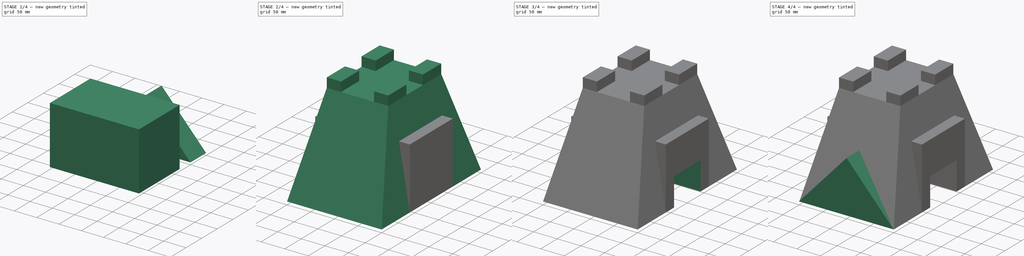
[diagram: build sequence overview — one tinted view per stage of 4, left to right]
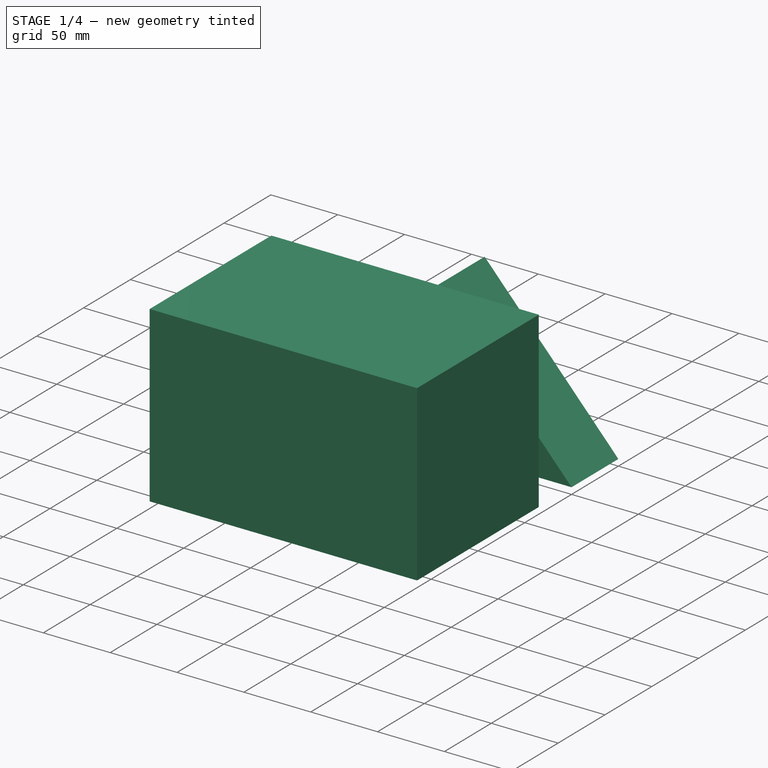
[diagram: stage 1 of 4 — iso view after this stage's code; geometry added in this stage tinted green]
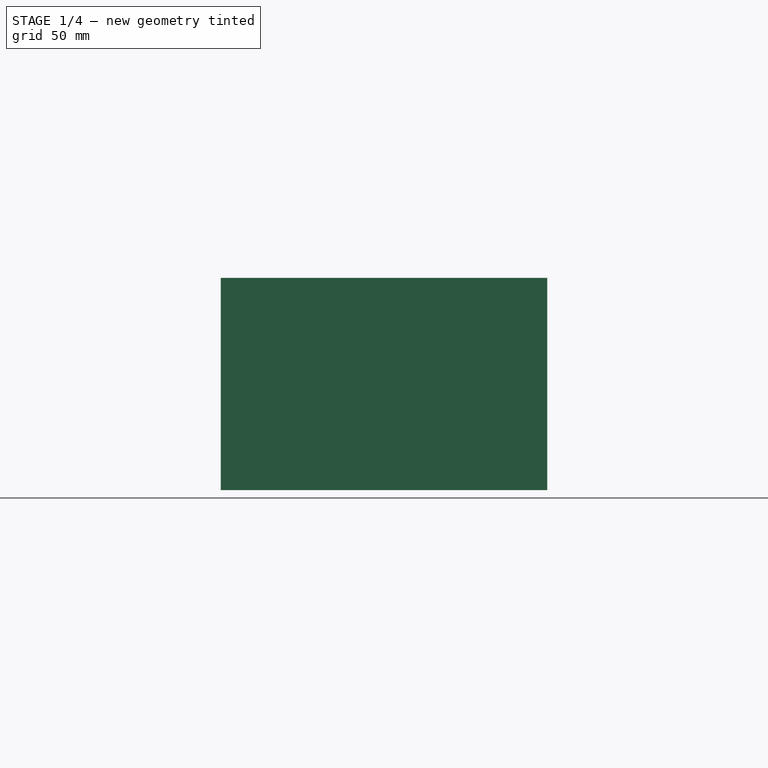
[diagram: stage 1 of 4 — front view after this stage's code; geometry added in this stage tinted green]
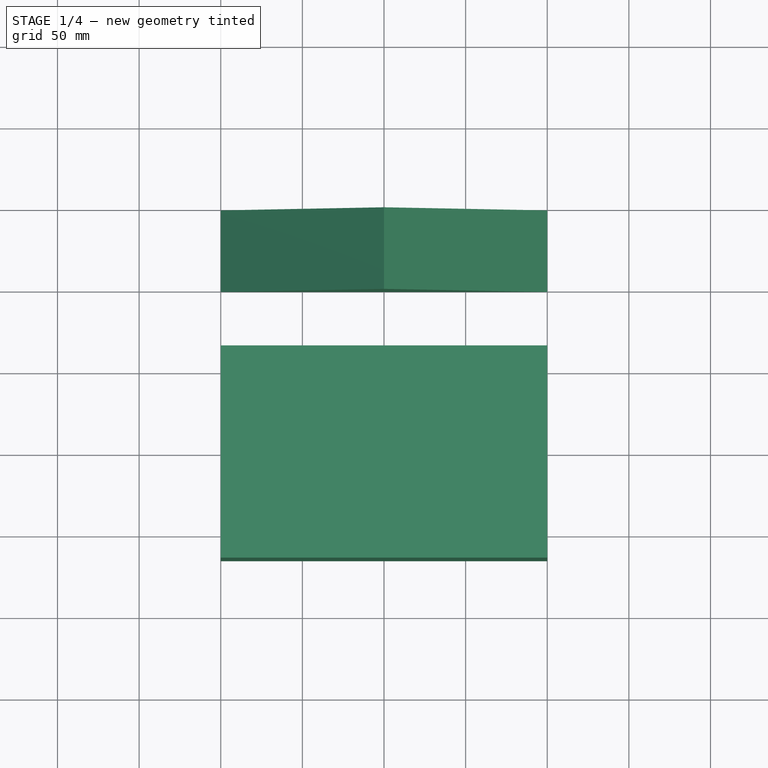
[diagram: stage 1 of 4 — top view after this stage's code; geometry added in this stage tinted green]
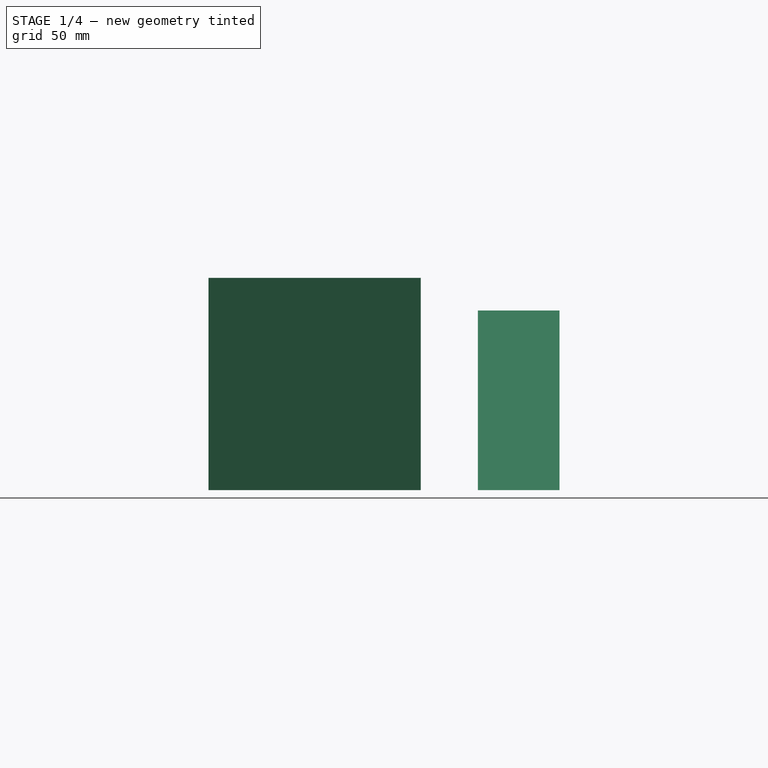
[diagram: stage 1 of 4 — right view after this stage's code; geometry added in this stage tinted green]
FCSTD DOCUMENT  (FreeCAD 0.16R)
Label: Ejer final 22
License: All rights reserved
LicenseURL: http://en.wikipedia.org/wiki/All_rights_reserved
objects: Sketcher::SketchObject×7, PartDesign::Pad×4, Part::MultiFuse×3, Part::Loft×1, PartDesign::Pocket×1, Part::Feature×1
note: 22 computed .brp shape members not serialized (recipe doc carries the construction recipe); baked Part::Feature solids carry a one-line shape summary decoded from their .brp

FEATURE [Sketcher::SketchObject] Sketch003
  Placement = pos=(0,0,0) rot=(0.57735,0.57735,0.57735;2.0944rad)
  sketch-geometry (4):
    g0: LineSegment StartX=-65 StartY=0 StartZ=0 EndX=65 EndY=0 EndZ=0
    g1: LineSegment StartX=65 StartY=0 StartZ=0 EndX=65 EndY=130 EndZ=0
    g2: LineSegment StartX=65 StartY=130 StartZ=0 EndX=-65 EndY=130 EndZ=0
    g3: LineSegment StartX=-65 StartY=130 StartZ=0 EndX=-65 EndY=0 EndZ=0
  constraints (12):
    c: Coincident(g0,g1)
    c: Coincident(g1,g2)
    c: Coincident(g2,g3)
    c: Coincident(g3,g0)
    c: Horizontal(g0)
    c: Horizontal(g2)
    c: Vertical(g1)
    c: Vertical(g3)
    c: PointOnObject(g0,g-1)
    c: Symmetric(g2,g1,g-2)
    c: DistanceX(g0,g0) = 130
    c: DistanceY(g0,g2) = 130
FEATURE [PartDesign::Pad] Pad001
  Length = 200
  Length2 = 100
  Midplane = true
  Placement = pos=(0,0,0) rot=(0.57735,0.57735,0.57735;2.0944rad)
  Sketch = -> Sketch003
  Type = 0
FEATURE [Sketcher::SketchObject] Sketch005
  Placement = pos=(0,150,0) rot=(-1,0,0;4.71239rad)
  sketch-geometry (3):
    g0: LineSegment StartX=-100 StartY=0 StartZ=0 EndX=0 EndY=110 EndZ=0
    g1: LineSegment StartX=0 StartY=110 StartZ=0 EndX=100 EndY=0 EndZ=0
    g2: LineSegment StartX=100 StartY=0 StartZ=0 EndX=-100 EndY=0 EndZ=0
  constraints (9):
    c: PointOnObject(g0,g-2)
    c: Coincident(g0,g1)
    c: Coincident(g1,g2)
    c: Coincident(g2,g0)
    c: Horizontal(g2)
    c: DistanceX(g2,g2) = 200
    c: Symmetric(g1,g0,g-2)
    c: DistanceY(g-1,g0) = 110
    c: PointOnObject(g-1,g2)
FEATURE [PartDesign::Pad] Pad002
  Length = 50
  Length2 = 100
  Placement = pos=(0,150,0) rot=(-1,0,0;4.71239rad)
  Sketch = -> Sketch005
  Type = 0
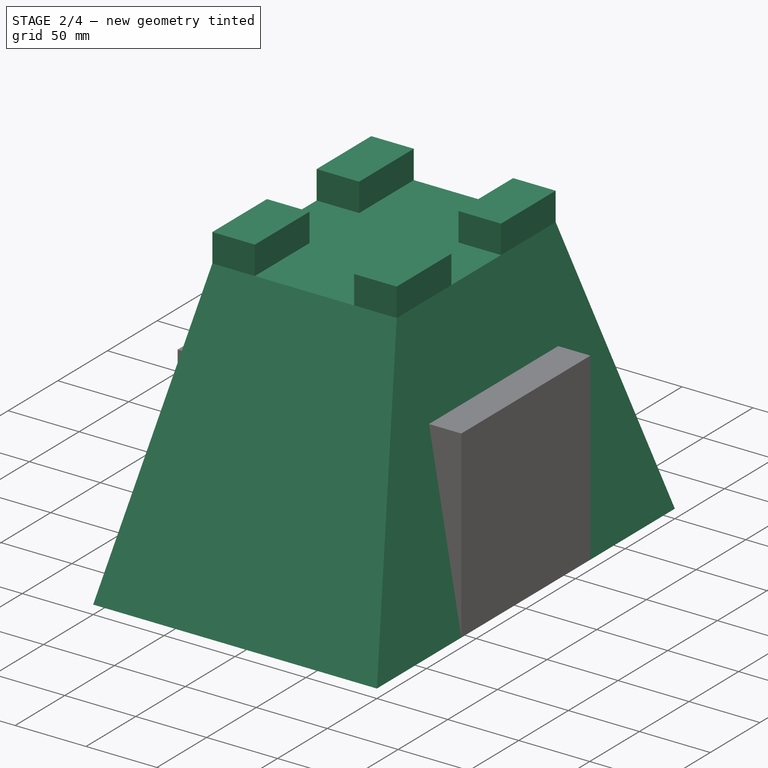
[diagram: stage 2 of 4 — iso view after this stage's code; geometry added in this stage tinted green]
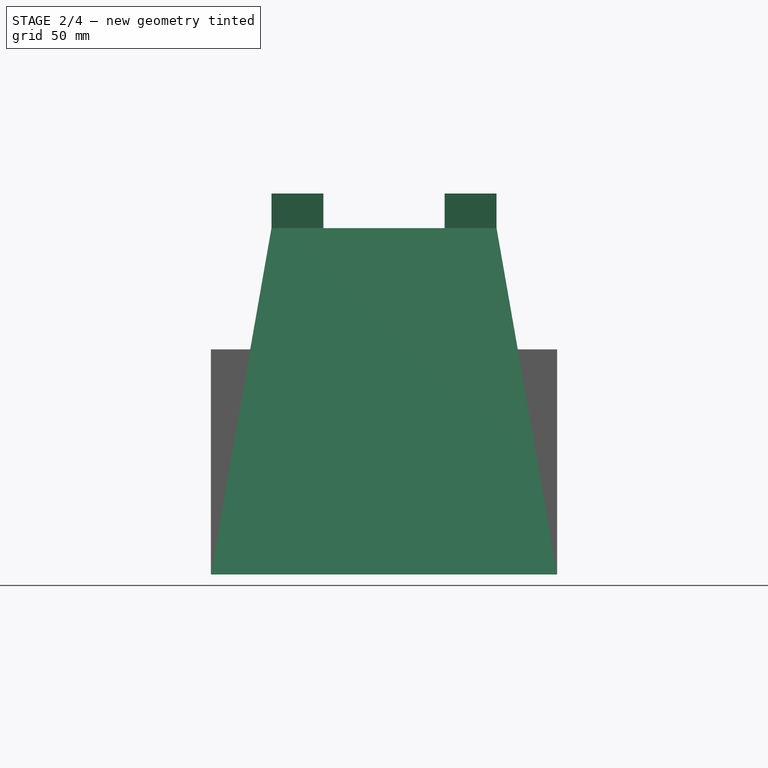
[diagram: stage 2 of 4 — front view after this stage's code; geometry added in this stage tinted green]
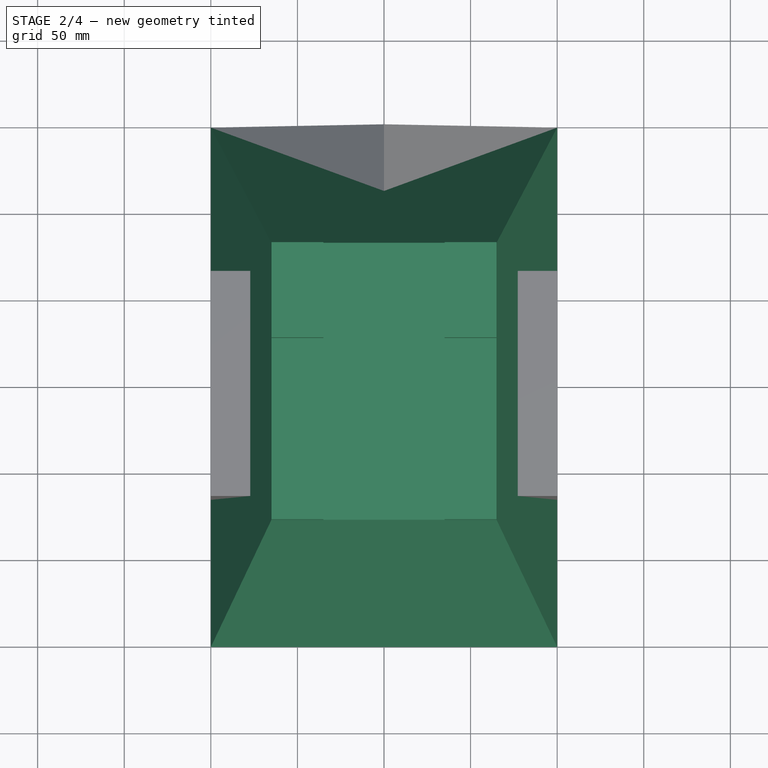
[diagram: stage 2 of 4 — top view after this stage's code; geometry added in this stage tinted green]
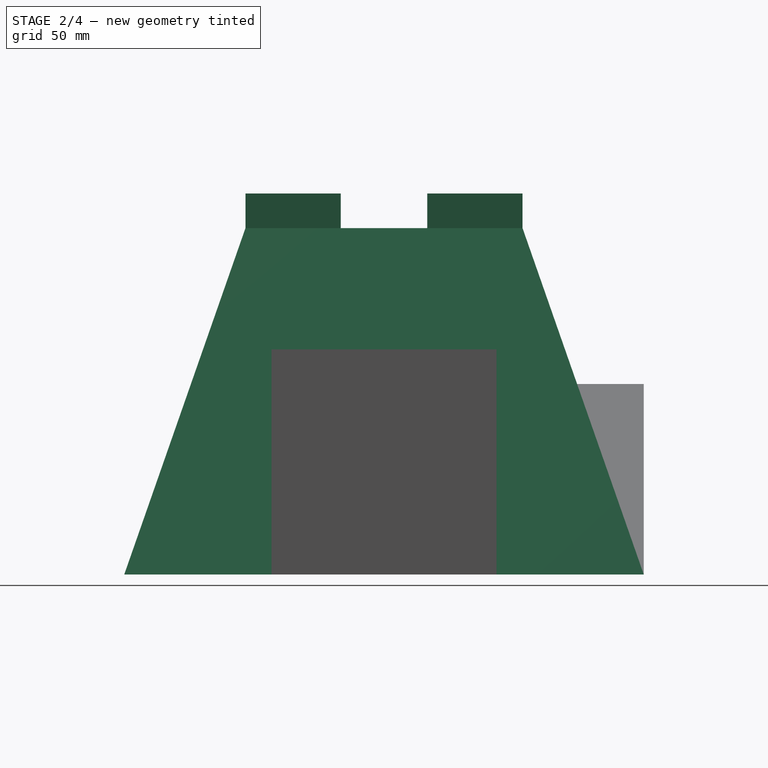
[diagram: stage 2 of 4 — right view after this stage's code; geometry added in this stage tinted green]
FEATURE [Sketcher::SketchObject] Sketch
  sketch-geometry (4):
    g0: LineSegment StartX=-100 StartY=150 StartZ=0 EndX=100 EndY=150 EndZ=0
    g1: LineSegment StartX=100 StartY=150 StartZ=0 EndX=100 EndY=-150 EndZ=0
    g2: LineSegment StartX=100 StartY=-150 StartZ=0 EndX=-100 EndY=-150 EndZ=0
    g3: LineSegment StartX=-100 StartY=-150 StartZ=0 EndX=-100 EndY=150 EndZ=0
  constraints (12):
    c: Coincident(g0,g1)
    c: Coincident(g1,g2)
    c: Coincident(g2,g3)
    c: Coincident(g3,g0)
    c: Horizontal(g0)
    c: Horizontal(g2)
    c: Vertical(g1)
    c: Vertical(g3)
    c: DistanceX(g2,g2) = 200
    c: DistanceY(g3,g3) = 300
    c: Symmetric(g1,g2,g-2)
    c: Symmetric(g0,g2,g-1)
FEATURE [Sketcher::SketchObject] Sketch001
  Placement = pos=(0,0,200) rot=(0,0,1;0rad)
  sketch-geometry (4):
    g0: LineSegment StartX=-65 StartY=80 StartZ=0 EndX=65 EndY=80 EndZ=0
    g1: LineSegment StartX=65 StartY=80 StartZ=0 EndX=65 EndY=-80 EndZ=0
    g2: LineSegment StartX=65 StartY=-80 StartZ=0 EndX=-65 EndY=-80 EndZ=0
    g3: LineSegment StartX=-65 StartY=-80 StartZ=0 EndX=-65 EndY=80 EndZ=0
  constraints (12):
    c: Coincident(g0,g1)
    c: Coincident(g1,g2)
    c: Coincident(g2,g3)
    c: Coincident(g3,g0)
    c: Horizontal(g0)
    c: Horizontal(g2)
    c: Vertical(g1)
    c: Vertical(g3)
    c: Symmetric(g2,g0,g-1)
    c: Symmetric(g0,g0,g-2)
    c: DistanceY(g1,g1) = 160
    c: DistanceX(g2,g2) = 130
FEATURE [Part::Loft] Loft
  Closed = false
  Ruled = false
  Sections = -> [Sketch001,Sketch]
  Solid = true
FEATURE [Sketcher::SketchObject] Sketch002
  ExternalGeometry = -> [Loft]
  Placement = pos=(0,0,200) rot=(0,0,1;0rad)
  Support = -> Loft [Face5]
  sketch-geometry (16):
    g0: LineSegment StartX=-65 StartY=80 StartZ=0 EndX=-35 EndY=80 EndZ=0
    g1: LineSegment StartX=-35 StartY=80 StartZ=0 EndX=-35 EndY=25 EndZ=0
    g2: LineSegment StartX=-35 StartY=25 StartZ=0 EndX=-65 EndY=25 EndZ=0
    g3: LineSegment StartX=-65 StartY=25 StartZ=0 EndX=-65 EndY=80 EndZ=0
    g4: LineSegment StartX=65 StartY=80 StartZ=0 EndX=35 EndY=80 EndZ=0
    g5: LineSegment StartX=35 StartY=80 StartZ=0 EndX=35 EndY=25 EndZ=0
    g6: LineSegment StartX=35 StartY=25 StartZ=0 EndX=65 EndY=25 EndZ=0
    g7: LineSegment StartX=65 StartY=25 StartZ=0 EndX=65 EndY=80 EndZ=0
    g8: LineSegment StartX=65 StartY=-80 StartZ=0 EndX=35 EndY=-80 EndZ=0
    g9: LineSegment StartX=35 StartY=-80 StartZ=0 EndX=35 EndY=-25 EndZ=0
    g10: LineSegment StartX=35 StartY=-25 StartZ=0 EndX=65 EndY=-25 EndZ=0
    g11: LineSegment StartX=65 StartY=-25 StartZ=0 EndX=65 EndY=-80 EndZ=0
    g12: LineSegment StartX=-65 StartY=-80 StartZ=0 EndX=-35 EndY=-80 EndZ=0
    g13: LineSegment StartX=-35 StartY=-80 StartZ=0 EndX=-35 EndY=-25 EndZ=0
    g14: LineSegment StartX=-35 StartY=-25 StartZ=0 EndX=-65 EndY=-25 EndZ=0
    g15: LineSegment StartX=-65 StartY=-25 StartZ=0 EndX=-65 EndY=-80 EndZ=0
  constraints (44):
    c: Coincident(g0,g1)
    c: Coincident(g1,g2)
    c: Coincident(g2,g3)
    c: Coincident(g3,g0)
    c: Horizontal(g0)
    c: Horizontal(g2)
    c: Vertical(g1)
    c: Vertical(g3)
    c: Coincident(g0,g-3)
    c: Coincident(g4,g5)
    c: Coincident(g5,g6)
    c: Coincident(g6,g7)
    c: Coincident(g7,g4)
    c: Horizontal(g4)
    c: Horizontal(g6)
    c: Vertical(g5)
    c: Vertical(g7)
    c: Coincident(g4,g-3)
    c: Coincident(g8,g9)
    c: Coincident(g9,g10)
    c: Coincident(g10,g11)
    c: Coincident(g11,g8)
    c: Horizontal(g8)
    c: Horizontal(g10)
    c: Vertical(g9)
    c: Vertical(g11)
    c: Coincident(g8,g-4)
    c: Coincident(g12,g13)
    c: Coincident(g13,g14)
    c: Coincident(g14,g15)
    c: Coincident(g15,g12)
    c: Horizontal(g12)
    c: Horizontal(g14)
    c: Vertical(g13)
    c: Vertical(g15)
    c: Coincident(g12,g-4)
    c: Equal(g13,g1)
    c: Equal(g1,g5)
    c: Equal(g5,g9)
    c: DistanceY(g12,g13) = 55
    c: Equal(g10,g6)
    c: Equal(g6,g2)
    c: Equal(g2,g14)
    c: DistanceX(g5,g6) = 30
FEATURE [PartDesign::Pad] Pad
  Length = 20
  Length2 = 100
  Sketch = -> Sketch002
  Type = 0
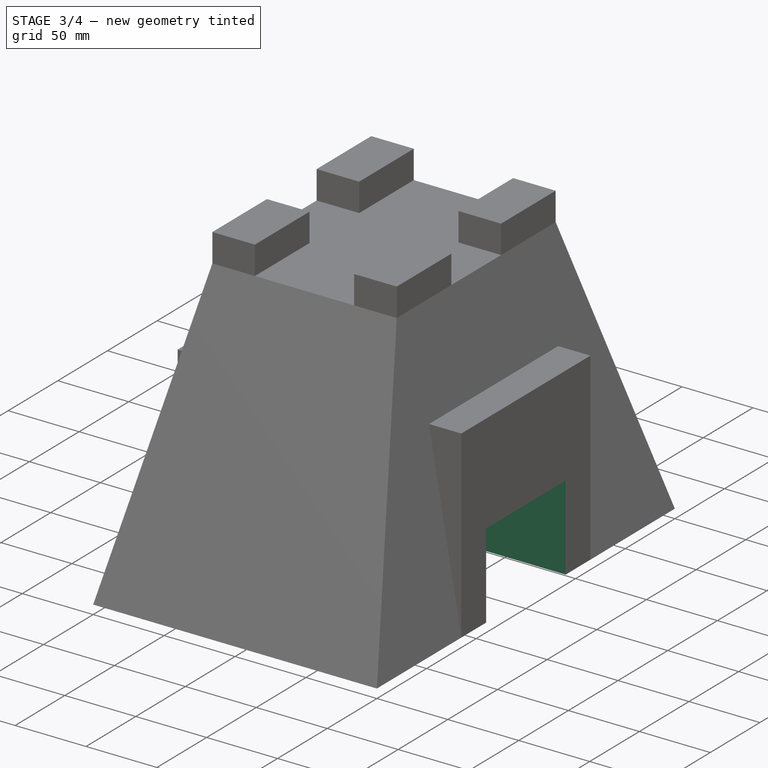
[diagram: stage 3 of 4 — iso view after this stage's code; geometry added in this stage tinted green]
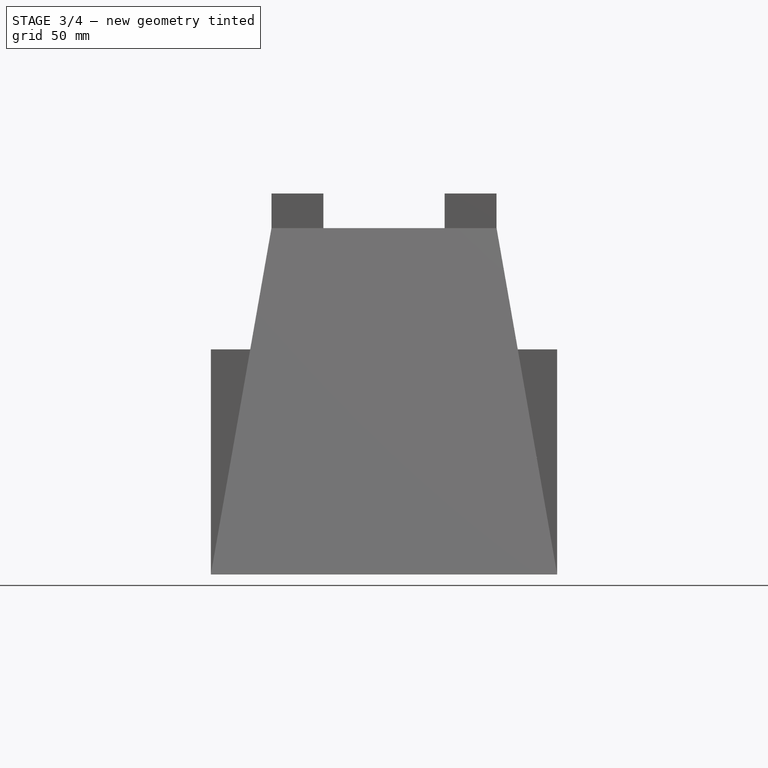
[diagram: stage 3 of 4 — front view after this stage's code; geometry added in this stage tinted green]
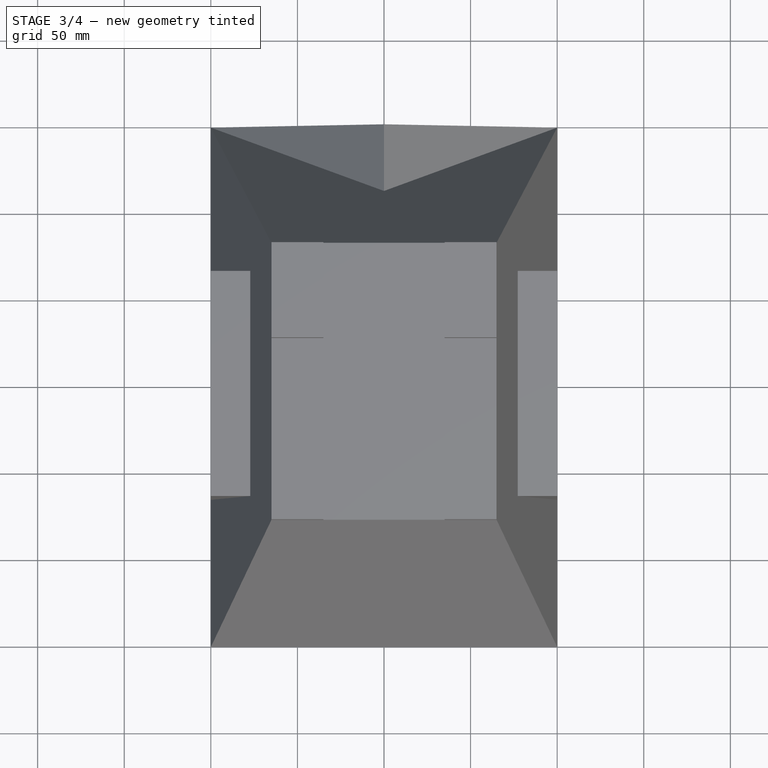
[diagram: stage 3 of 4 — top view after this stage's code; geometry added in this stage tinted green]
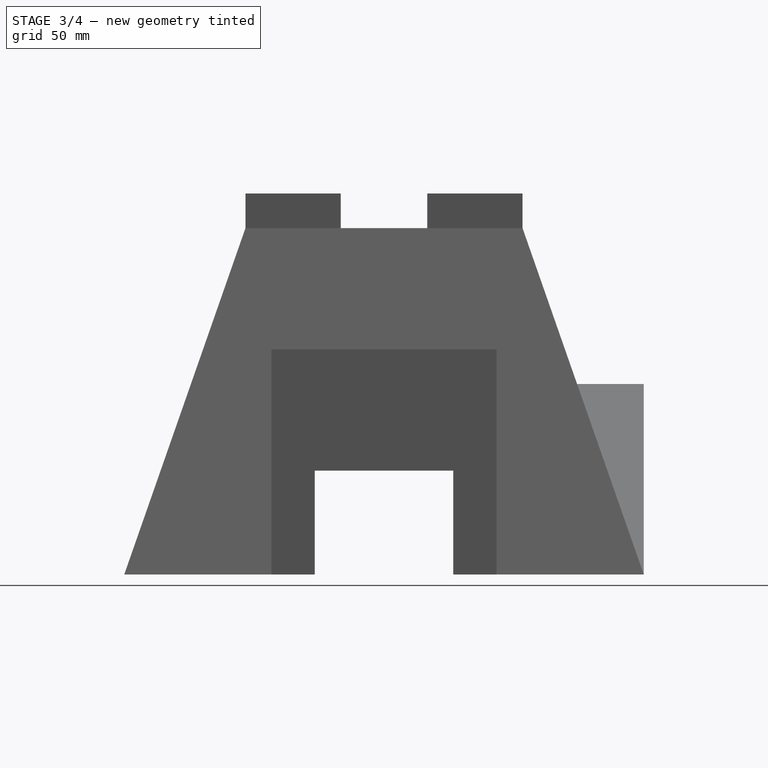
[diagram: stage 3 of 4 — right view after this stage's code; geometry added in this stage tinted green]
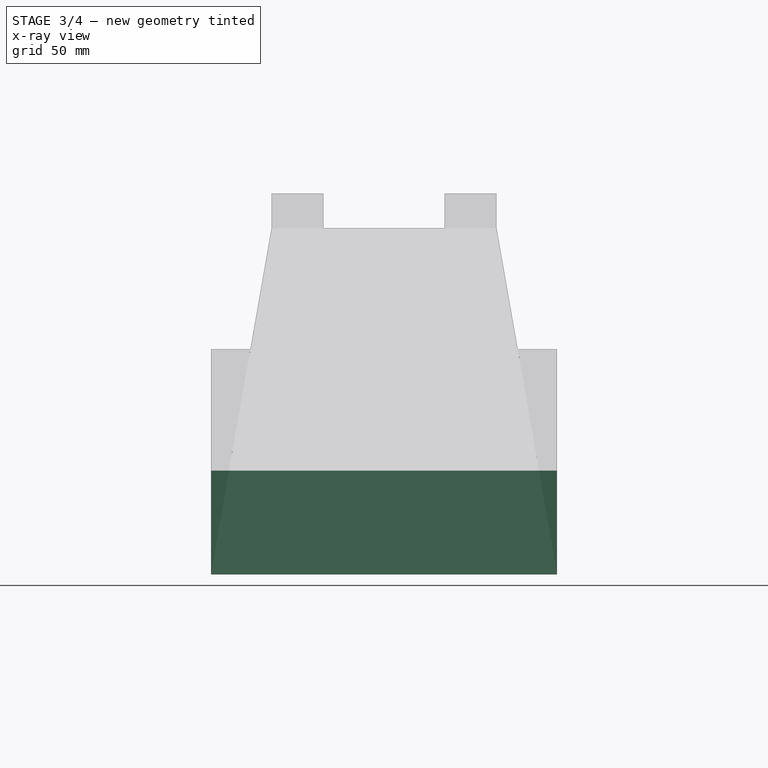
[diagram: stage 3 of 4 — x-ray composite at the front view; earlier geometry ghosted, this stage's added geometry solid]
FEATURE [Part::MultiFuse] Fusion
  Shapes = -> [Pad001,Pad]
FEATURE [Sketcher::SketchObject] Sketch004
  Placement = pos=(100,0,0) rot=(0.57735,0.57735,0.57735;2.0944rad)
  Support = -> Fusion [Face33]
  sketch-geometry (4):
    g0: LineSegment StartX=-40 StartY=0 StartZ=0 EndX=40 EndY=0 EndZ=0
    g1: LineSegment StartX=40 StartY=0 StartZ=0 EndX=40 EndY=60 EndZ=0
    g2: LineSegment StartX=40 StartY=60 StartZ=0 EndX=-40 EndY=60 EndZ=0
    g3: LineSegment StartX=-40 StartY=60 StartZ=0 EndX=-40 EndY=0 EndZ=0
  constraints (12):
    c: Coincident(g0,g1)
    c: Coincident(g1,g2)
    c: Coincident(g2,g3)
    c: Coincident(g3,g0)
    c: Horizontal(g0)
    c: Horizontal(g2)
    c: Vertical(g1)
    c: Vertical(g3)
    c: PointOnObject(g-1,g0)
    c: Symmetric(g0,g0,g-2)
    c: DistanceY(g0,g2) = 60
    c: DistanceX(g2,g1) = 80
FEATURE [PartDesign::Pocket] Pocket
  Length = 5
  Sketch = -> Sketch004
  Type = 1
FEATURE [Part::MultiFuse] Fusion001
  Shapes = -> [Pocket,Pad002]
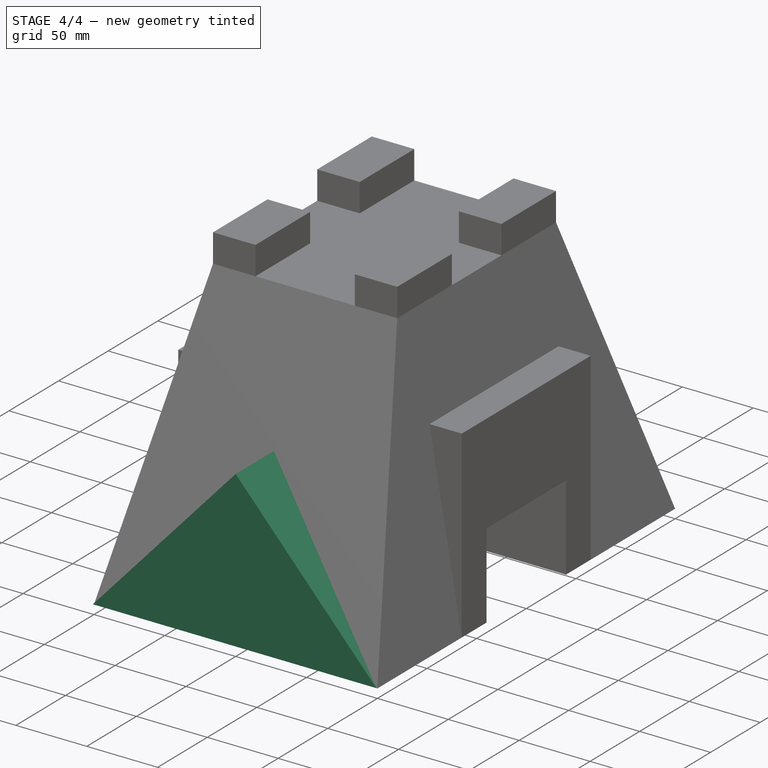
[diagram: stage 4 of 4 — iso view after this stage's code; geometry added in this stage tinted green]
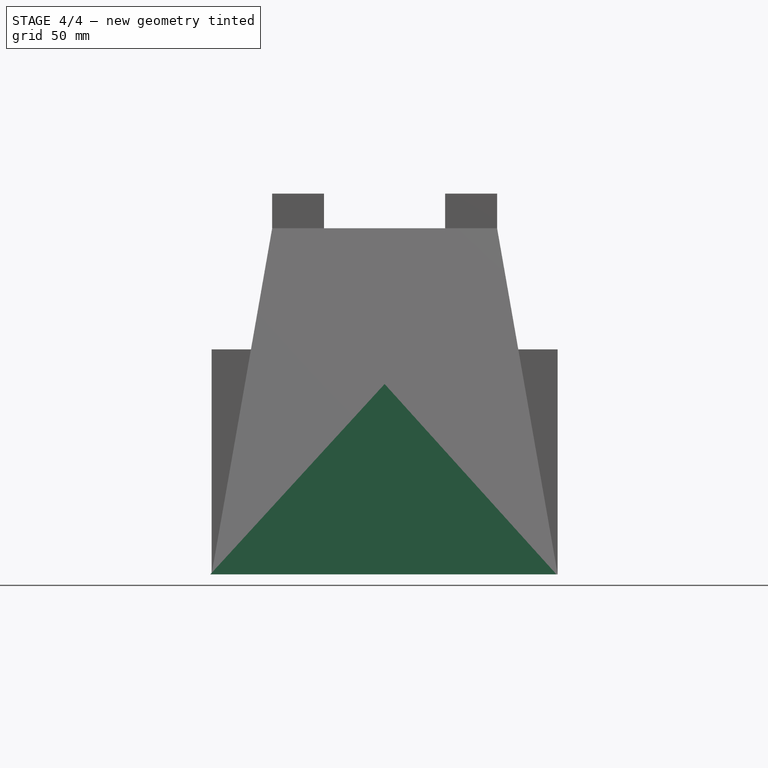
[diagram: stage 4 of 4 — front view after this stage's code; geometry added in this stage tinted green]
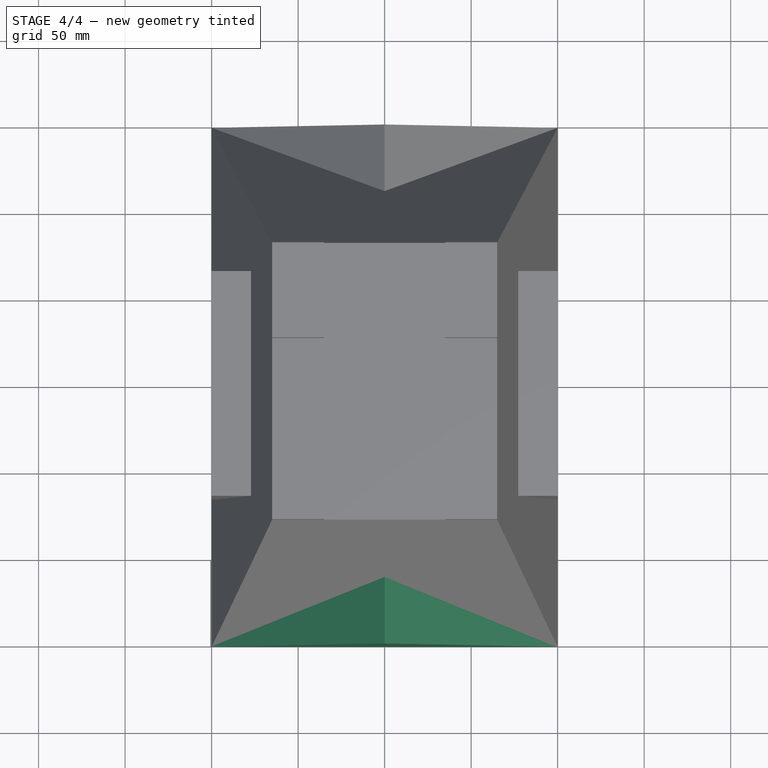
[diagram: stage 4 of 4 — top view after this stage's code; geometry added in this stage tinted green]
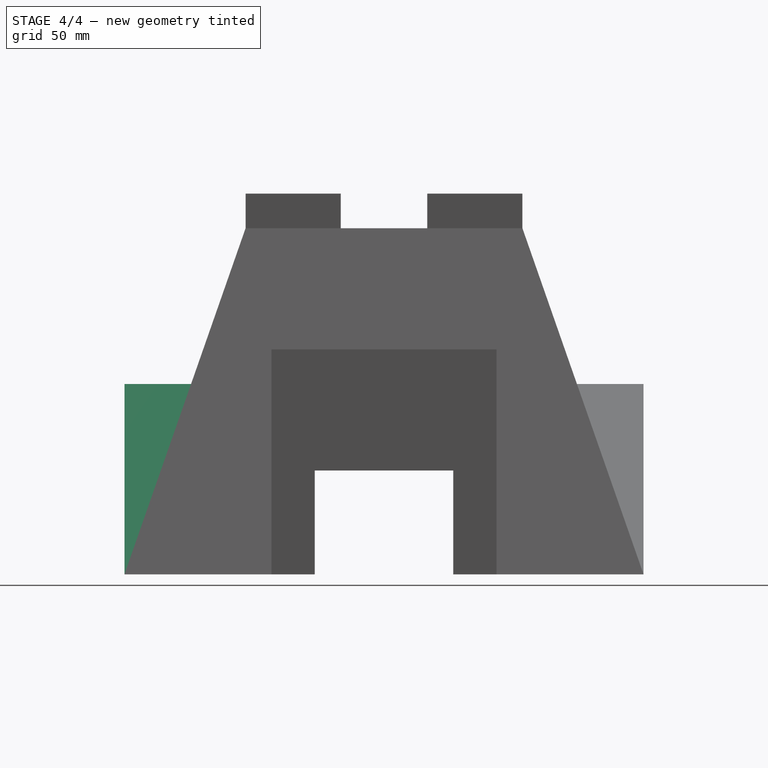
[diagram: stage 4 of 4 — right view after this stage's code; geometry added in this stage tinted green]
FEATURE [Sketcher::SketchObject] Sketch006
  Placement = pos=(0,-150,0) rot=(-1,0,0;4.71239rad)
  sketch-geometry (3):
    g0: LineSegment StartX=99.2792 StartY=0 StartZ=0 EndX=-100.721 EndY=0 EndZ=0
    g1: LineSegment StartX=-100.721 StartY=0 StartZ=0 EndX=0 EndY=110 EndZ=0
    g2: LineSegment StartX=0 StartY=110 StartZ=0 EndX=99.2792 EndY=0 EndZ=0
  constraints (8):
    c: Horizontal(g0)
    c: Coincident(g0,g1)
    c: PointOnObject(g1,g-2)
    c: Coincident(g1,g2)
    c: Coincident(g2,g0)
    c: DistanceX(g0,g0) = 200
    c: DistanceY(g-1,g1) = 110
    c: PointOnObject(g-1,g0)
FEATURE [PartDesign::Pad] Pad003
  Length = 50
  Length2 = 100
  Placement = pos=(0,-150,0) rot=(-1,0,0;4.71239rad)
  Reversed = true
  Sketch = -> Sketch006
  Type = 0
FEATURE [Part::MultiFuse] Fusion002
  Shapes = -> [Pad003,Fusion001]
FEATURE [Part::Feature] Fusion002001  label="Fusion003"
  shape: bbox 200.7 x 300 x 220 mm, 45 faces (baked)
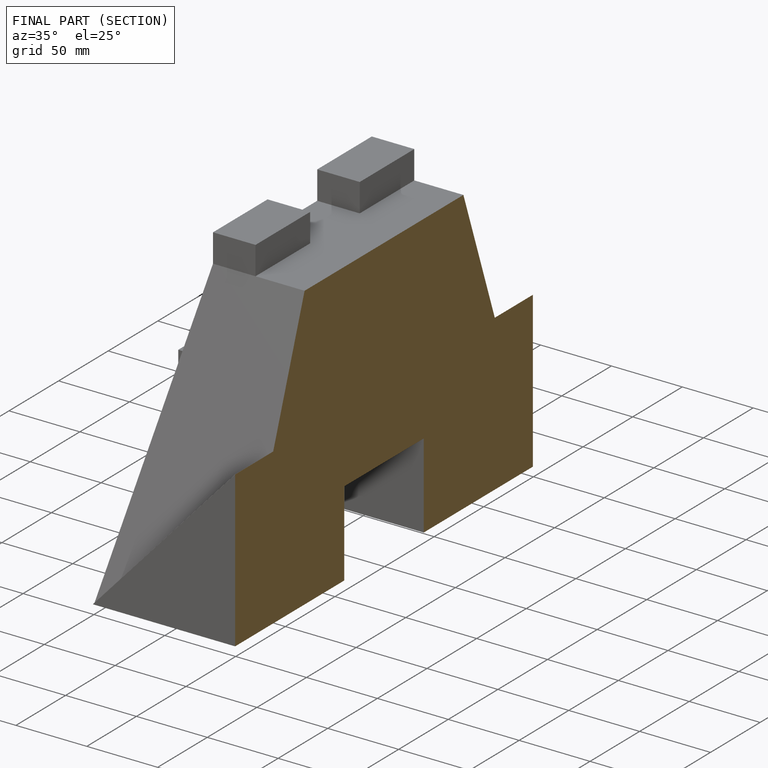
[diagram: finished part — half-section view (interior)]
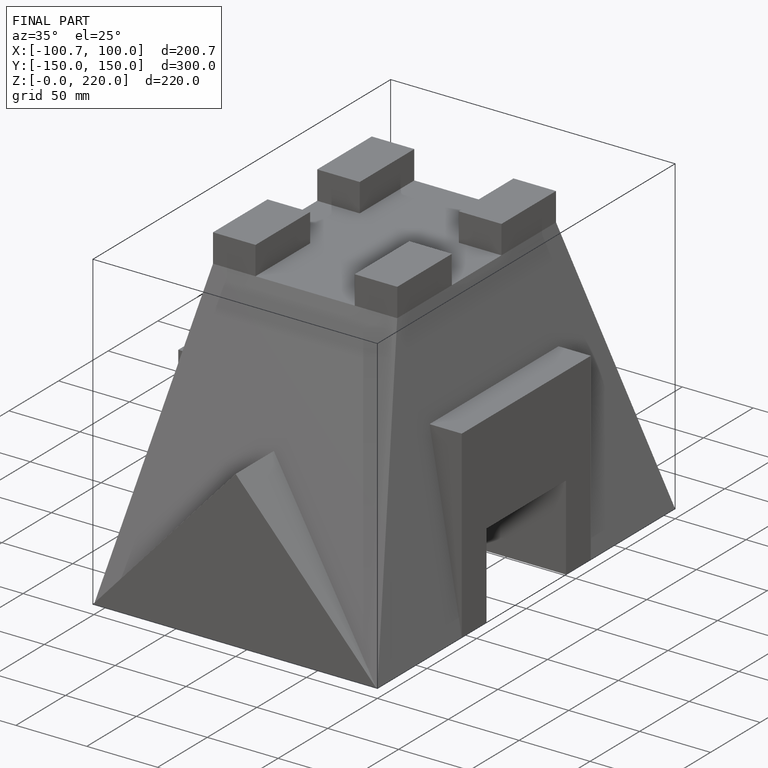
[diagram: finished part — iso view with bounding-box wireframe]
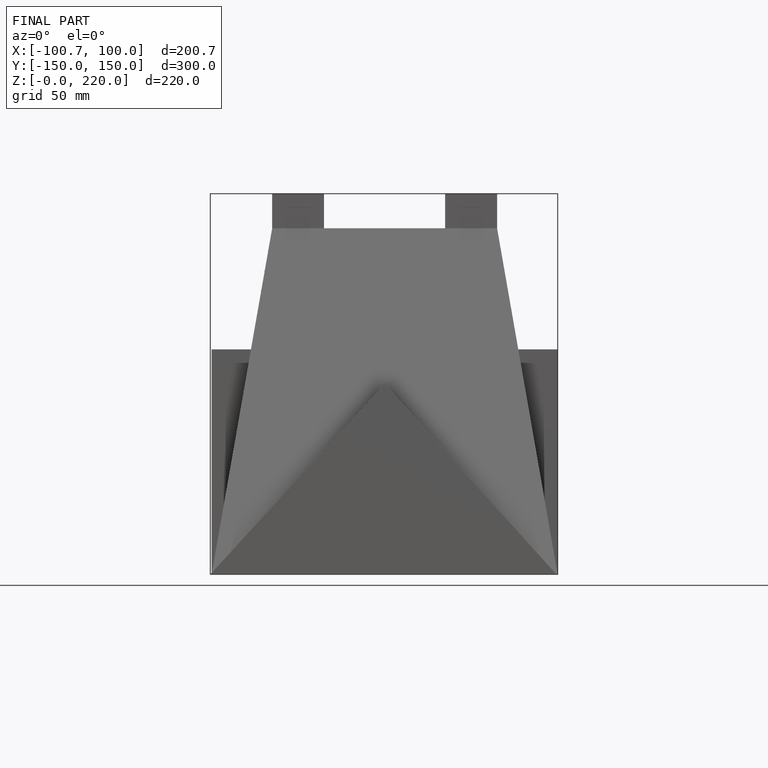
[diagram: finished part — front view with bounding-box wireframe]
